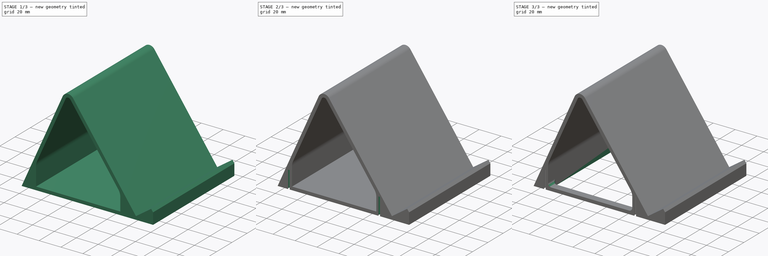
[diagram: build sequence overview — one tinted view per stage of 3, left to right]
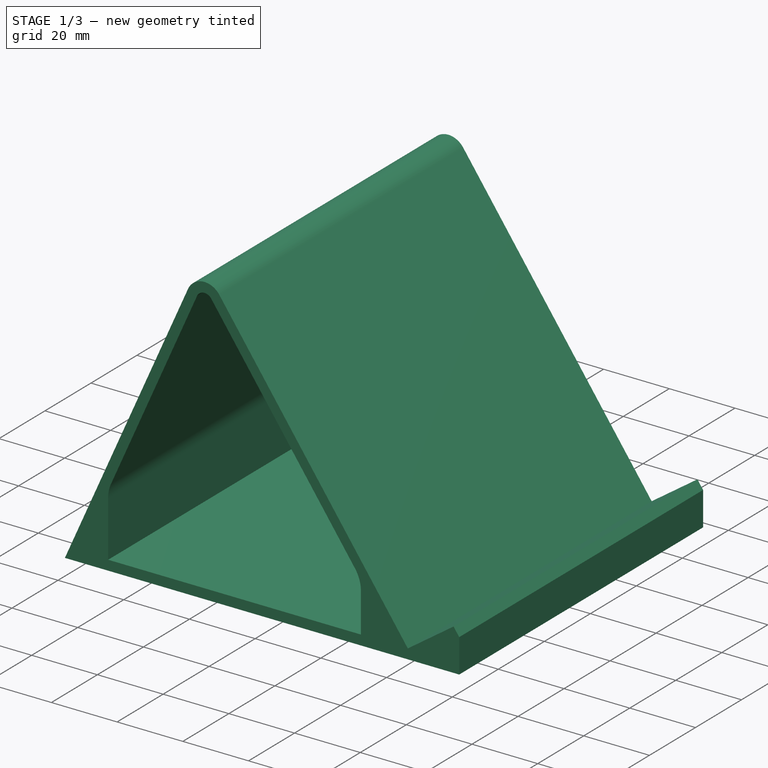
[diagram: stage 1 of 3 — iso view after this stage's code; geometry added in this stage tinted green]
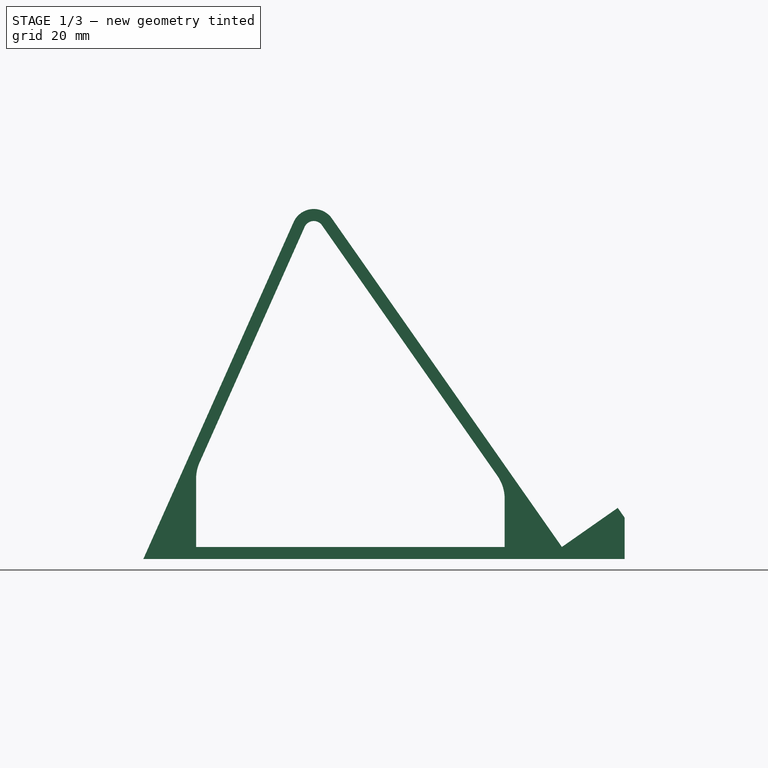
[diagram: stage 1 of 3 — front view after this stage's code; geometry added in this stage tinted green]
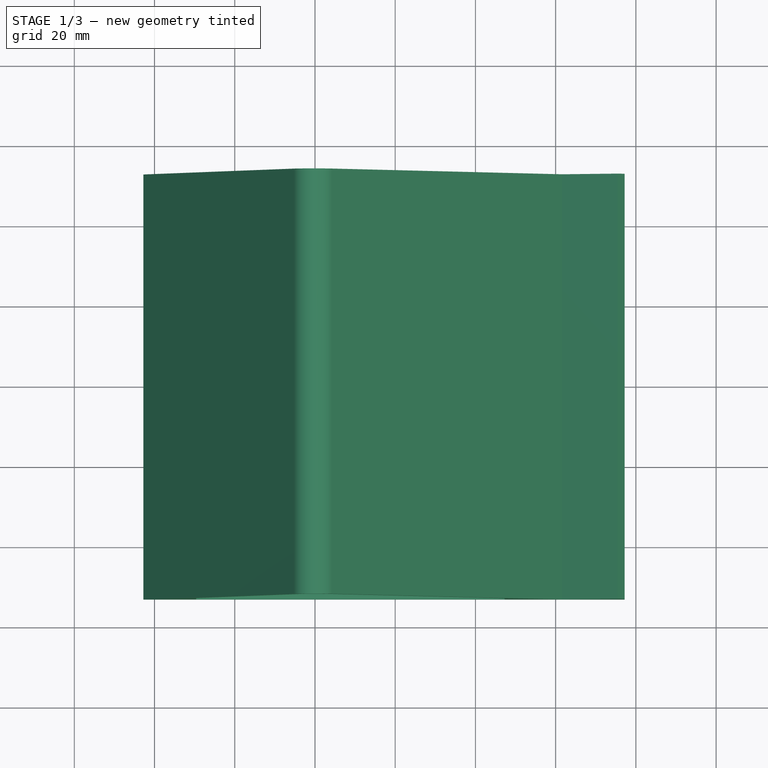
[diagram: stage 1 of 3 — top view after this stage's code; geometry added in this stage tinted green]
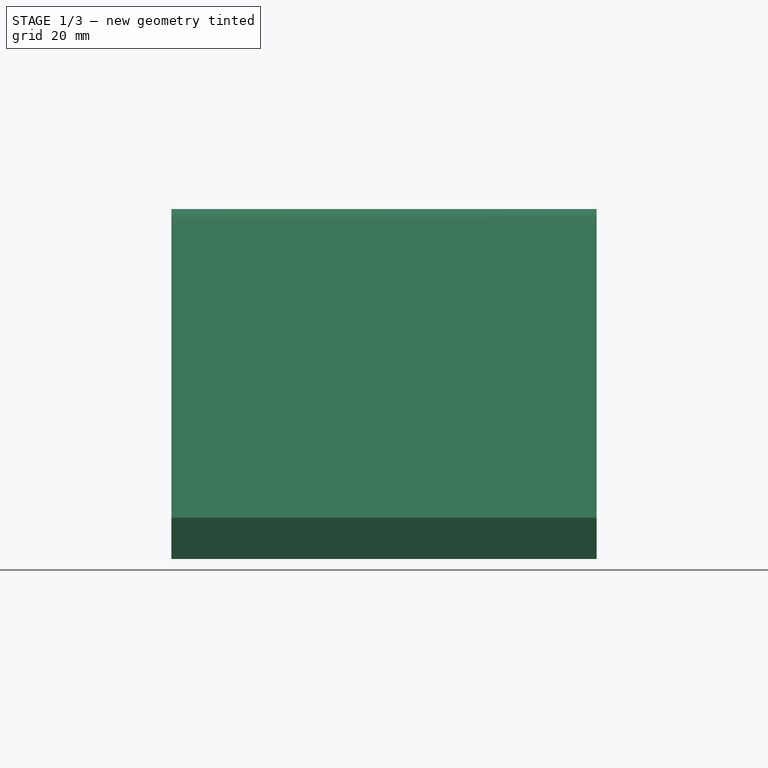
[diagram: stage 1 of 3 — right view after this stage's code; geometry added in this stage tinted green]
FCSTD DOCUMENT  (FreeCAD 0.19R24276 (Git))
Label: module_display_stand
License: All rights reserved
LicenseURL: http://en.wikipedia.org/wiki/All_rights_reserved
objects: Sketcher::SketchObject×5, PartDesign::Pocket×4, PartDesign::Pad×1, PartDesign::Fillet×1, PartDesign::Body×1
note: 18 computed .brp shape members not serialized (recipe doc carries the construction recipe); baked Part::Feature solids carry a one-line shape summary decoded from their .brp

FEATURE [Sketcher::SketchObject] Sketch
  FullyConstrained = true
  MapMode = 5
  Placement = pos=(0,0,0) rot=(1,0,0;1.5708rad)
  Support = -> [XZ_Plane]
  sketch-geometry (20):
    g0: ArcOfCircle CenterX=-20.3013 CenterY=81.7605 CenterZ=0 NormalX=0 NormalY=0 NormalZ=1 AngleXU=0 Radius=5.5 StartAngle=0.610865 EndAngle=2.72204
    g1: LineSegment StartX=-15.7959 StartY=84.9152 StartZ=0 EndX=41.5617 EndY=3 EndZ=0
    g2: LineSegment StartX=41.5617 StartY=3 StartZ=0 EndX=55.4873 EndY=12.7508 EndZ=0
    g3: LineSegment StartX=-25.3243 StartY=84.001 StartZ=0 EndX=-62.792 EndY=0 EndZ=0
    g4: LineSegment StartX=-48.7693 StartY=24.0735 StartZ=0 EndX=-22.5845 EndY=82.7789 EndZ=0
    g5: ArcOfCircle CenterX=-20.3013 CenterY=81.7605 CenterZ=0 NormalX=0 NormalY=0 NormalZ=1 AngleXU=0 Radius=2.5 StartAngle=0.610865 EndAngle=2.72204
    g6: LineSegment StartX=-18.2534 StartY=83.1945 StartZ=0 EndX=40 EndY=0 EndZ=0
    g7: LineSegment StartX=57.208 StartY=10.2933 StartZ=0 EndX=57.208 EndY=0 EndZ=0
    g8: LineSegment StartX=41.5617 StartY=3 StartZ=0 EndX=43.2824 EndY=0.542544 EndZ=0
    g9: LineSegment StartX=43.2824 StartY=0.542544 StartZ=0 EndX=57.208 EndY=10.2933 EndZ=0
    g10: LineSegment StartX=41.5617 StartY=3 StartZ=0 EndX=39.1042 EndY=1.27927 EndZ=0
    g11: LineSegment StartX=-49.6366 StartY=20 StartZ=0 EndX=-49.6366 EndY=3 EndZ=0
    g12: LineSegment StartX=-49.6366 StartY=3 StartZ=0 EndX=27.2891 EndY=3 EndZ=0
    g13: LineSegment StartX=-18.2534 StartY=83.1945 StartZ=0 EndX=25.4807 EndY=20.7358 EndZ=0
    g14: LineSegment StartX=27.2891 StartY=15 StartZ=0 EndX=27.2891 EndY=3 EndZ=0
    g15: ArcOfCircle CenterX=17.2891 CenterY=15 CenterZ=0 NormalX=0 NormalY=0 NormalZ=1 AngleXU=0 Radius=10 StartAngle=0 EndAngle=0.610865
    g16: ArcOfCircle CenterX=-39.6366 CenterY=20 CenterZ=0 NormalX=0 NormalY=0 NormalZ=1 AngleXU=0 Radius=10 StartAngle=2.72204 EndAngle=3.14159
    g17: LineSegment StartX=-48.7693 StartY=24.0735 StartZ=0 EndX=-51.5092 EndY=25.2956 EndZ=0
    g18: LineSegment StartX=57.208 StartY=10.2933 StartZ=0 EndX=55.4873 EndY=12.7508 EndZ=0
    g19: LineSegment StartX=57.208 StartY=0 StartZ=0 EndX=-62.792 EndY=0 EndZ=0
  constraints (54):
    c: Tangent(g0,g1) = 1.5708
    c: Tangent(g0,g3) = -1.5708
    c: PointOnObject(g3,g-1)
    c: Tangent(g5,g4) = 1.5708
    c: Tangent(g5,g6) = 1.5708
    c: PointOnObject(g7,g-1)
    c: PointOnObject(g6,g-1)
    c: Coincident(g2,g1)
    c: Angle(g1,g-1) = 0.959931
    c: Perpendicular(g1,g2)
    c: Coincident(g1,g8)
    c: Coincident(g8,g9)
    c: Coincident(g9,g7)
    c: Parallel(g8,g1)
    c: Perpendicular(g8,g9)
    c: Coincident(g10,g1)
    c: PointOnObject(g10,g6)
    c: Perpendicular(g10,g1)
    c: Distance(g10) = 3
    c: Distance(g9) = 17
    c: Parallel(g6,g1)
    c: DistanceX(g-1,g6) = 40
    c: Coincident(g0,g5)
    c: Vertical(g11)
    c: Coincident(g12,g11)
    c: Horizontal(g12)
    c: Coincident(g13,g5)
    c: Coincident(g14,g12)
    c: Vertical(g14)
    c: Tangent(g13,g15) = 1.5708
    c: Tangent(g14,g15) = 1.5708
    c: Tangent(g11,g16) = -1.5708
    c: Tangent(g4,g16) = 1.5708
    c: PointOnObject(g13,g6)
    c: Radius(g15) = 10
    c: Equal(g15,g16)
    c: DistanceY(g-1,g12) = 3
    c: Parallel(g4,g3)
    c: Coincident(g17,g4)
    c: PointOnObject(g17,g3)
    c: Perpendicular(g3,g17)
    c: DistanceY(g6,g1) = 3
    c: Vertical(g7)
    c: Coincident(g18,g7)
    c: Coincident(g2,g18)
    c: Perpendicular(g2,g18)
    c: Coincident(g19,g7)
    c: Coincident(g19,g3)
    c: Distance(g18) = 3
    c: DistanceY(g3,g11) = 20
    c: DistanceY(g-1,g14) = 15
    c: Radius(g5) = 2.5
    c: Distance(g1,g0) = 100
    c: DistanceX(g19,g19) = 120
FEATURE [PartDesign::Pad] Pad
  Direction = (1,1,1)
  Length = 106
  Length2 = 100
  Midplane = true
  Placement = pos=(0,0,0) rot=(1,0,0;1.5708rad)
  Profile = -> Sketch
  Type = 0
FEATURE [Sketcher::SketchObject] Sketch001
  ExternalGeometry = -> [Pad]
  FullyConstrained = true
  MapMode = 5
  Placement = pos=(29.2979,-4.6e-15,20.5146) rot=(0.461749,0,0.887011;3.14159rad)
  Support = -> [Pad]
  sketch-geometry (4):
    g0: Circle CenterX=-23.8814 CenterY=-47 CenterZ=0 NormalX=0 NormalY=0 NormalZ=1 AngleXU=0 Radius=1.65
    g1: Circle CenterX=-23.8814 CenterY=47 CenterZ=0 NormalX=0 NormalY=0 NormalZ=1 AngleXU=0 Radius=1.65
    g2: LineSegment StartX=-23.8814 StartY=-47 StartZ=0 EndX=-23.8814 EndY=0 EndZ=0
    g3: LineSegment StartX=-23.8814 StartY=0 StartZ=0 EndX=-23.8814 EndY=47 EndZ=0
  constraints (11):
    c: Coincident(g2,g0)
    c: PointOnObject(g2,g-1)
    c: Vertical(g2)
    c: Coincident(g2,g3)
    c: Coincident(g3,g1)
    c: Vertical(g3)
    c: Equal(g3,g2)
    c: Diameter(g0) = 3.3
    c: Equal(g0,g1)
    c: DistanceY(g0,g1) = 94
    c: DistanceX(g2,g-3) = 2.5
FEATURE [PartDesign::Pocket] Pocket
  BaseFeature = -> Pad
  Length = 30
  Length2 = 100
  Midplane = true
  Placement = pos=(0,0,0) rot=(1,0,0;1.5708rad)
  Profile = -> Sketch001
  Type = 0
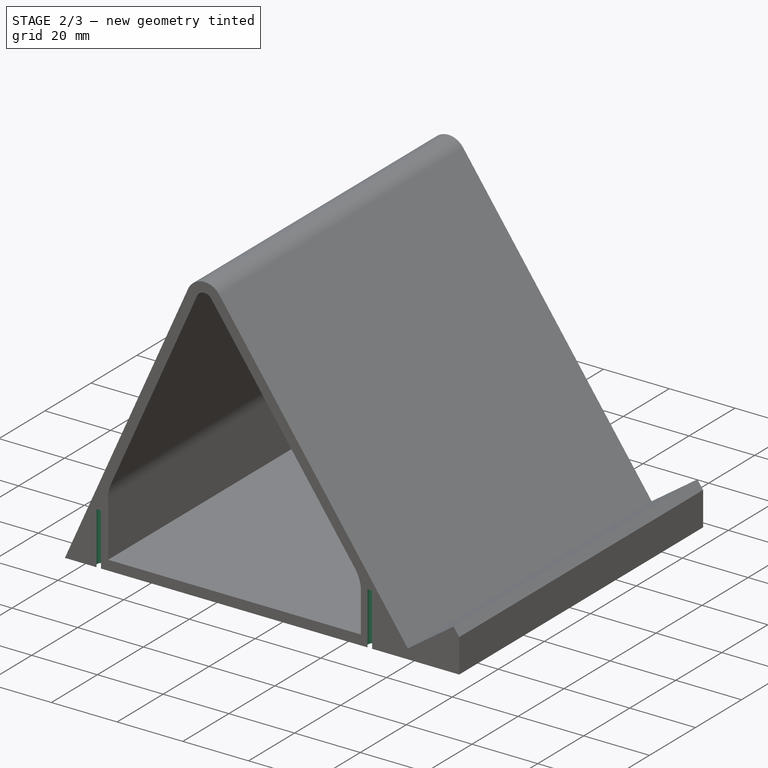
[diagram: stage 2 of 3 — iso view after this stage's code; geometry added in this stage tinted green]
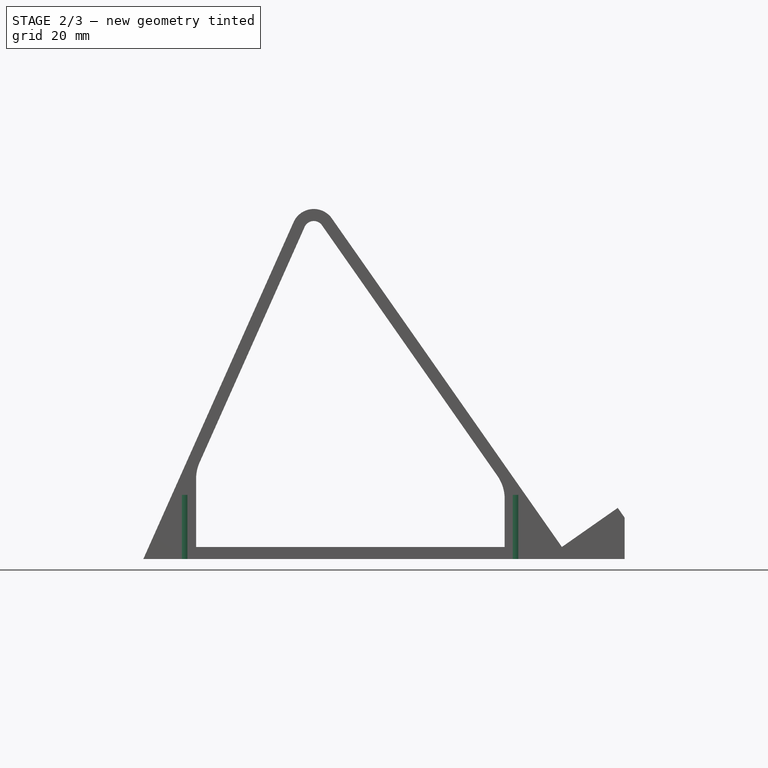
[diagram: stage 2 of 3 — front view after this stage's code; geometry added in this stage tinted green]
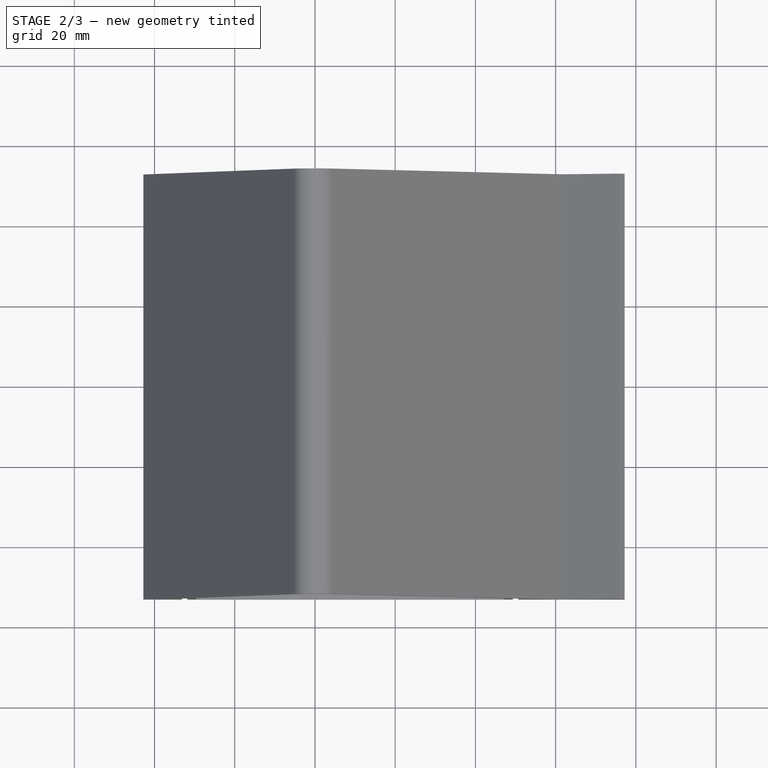
[diagram: stage 2 of 3 — top view after this stage's code; geometry added in this stage tinted green]
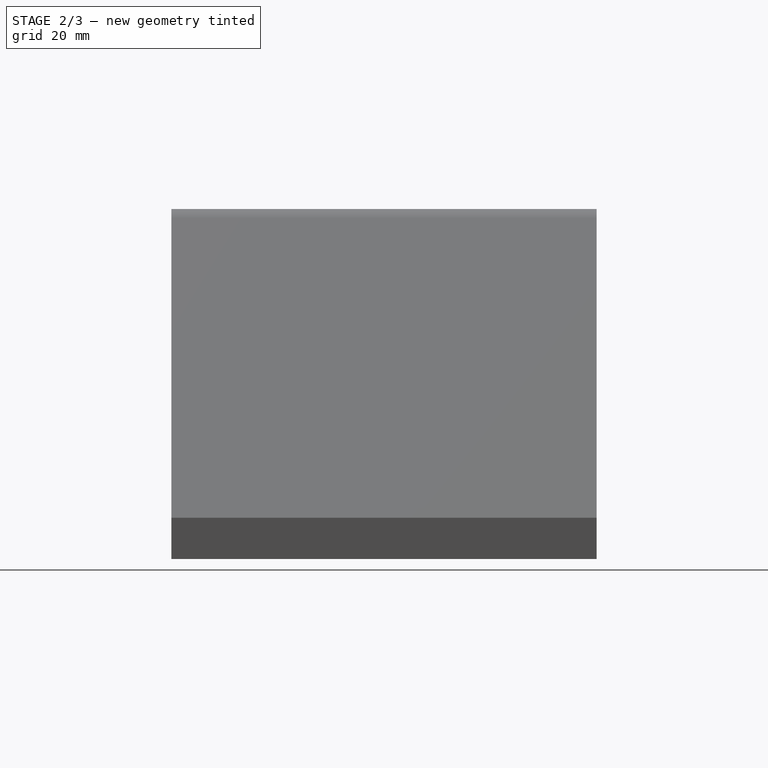
[diagram: stage 2 of 3 — right view after this stage's code; geometry added in this stage tinted green]
FEATURE [Sketcher::SketchObject] Sketch002
  FullyConstrained = true
  MapMode = 5
  Placement = pos=(0,0,0) rot=(1,0,0;3.14159rad)
  Support = -> [Pocket]
  sketch-geometry (10):
    g0: LineSegment StartX=-52.5 StartY=51.5 StartZ=0 EndX=30 EndY=51.5 EndZ=0
    g1: LineSegment StartX=30 StartY=51.5 StartZ=0 EndX=30 EndY=-51.5 EndZ=0
    g2: LineSegment StartX=30 StartY=-51.5 StartZ=0 EndX=-52.5 EndY=-51.5 EndZ=0
    g3: LineSegment StartX=-52.5 StartY=-51.5 StartZ=0 EndX=-52.5 EndY=51.5 EndZ=0
    g4: LineSegment StartX=-52.5 StartY=51.5 StartZ=0 EndX=0 EndY=0 EndZ=0
    g5: LineSegment StartX=-52.5 StartY=-51.5 StartZ=0 EndX=0 EndY=7.1e-15 EndZ=0
    g6: Circle CenterX=-52.5 CenterY=51.5 CenterZ=0 NormalX=0 NormalY=0 NormalZ=1 AngleXU=0 Radius=1.65
    g7: Circle CenterX=30 CenterY=51.5 CenterZ=0 NormalX=0 NormalY=0 NormalZ=1 AngleXU=0 Radius=1.65
    g8: Circle CenterX=30 CenterY=-51.5 CenterZ=0 NormalX=0 NormalY=0 NormalZ=1 AngleXU=0 Radius=1.65
    g9: Circle CenterX=-52.5 CenterY=-51.5 CenterZ=0 NormalX=0 NormalY=0 NormalZ=1 AngleXU=0 Radius=1.65
  constraints (24):
    c: Coincident(g0,g1)
    c: Coincident(g1,g2)
    c: Coincident(g2,g3)
    c: Coincident(g3,g0)
    c: Horizontal(g0)
    c: Horizontal(g2)
    c: Vertical(g1)
    c: Vertical(g3)
    c: Coincident(g4,g0)
    c: Coincident(g4,g-1)
    c: Coincident(g5,g2)
    c: Coincident(g5,g-1)
    c: Equal(g4,g5)
    c: DistanceX(g0,g-1) = 52.5
    c: Coincident(g6,g0)
    c: Coincident(g7,g0)
    c: Coincident(g8,g1)
    c: Coincident(g9,g2)
    c: Diameter(g9) = 3.3
    c: Equal(g9,g8)
    c: Equal(g9,g7)
    c: Equal(g9,g6)
    c: DistanceY(g3,g3) = 103
    c: DistanceX(g-1,g7) = 30
FEATURE [PartDesign::Pocket] Pocket001
  BaseFeature = -> Pocket
  Length = 16
  Length2 = 100
  Placement = pos=(0,0,0) rot=(1,0,0;1.5708rad)
  Profile = -> Sketch002
  Type = 0
FEATURE [Sketcher::SketchObject] Sketch003
  FullyConstrained = true
  MapMode = 5
  Placement = pos=(0,0,0) rot=(0,1,0;3.14159rad)
  Support = -> [XY_Plane]
  sketch-geometry (10):
    g0: LineSegment StartX=-50 StartY=46 StartZ=0 EndX=56 EndY=46 EndZ=0
    g1: LineSegment StartX=56 StartY=46 StartZ=0 EndX=56 EndY=-46 EndZ=0
    g2: LineSegment StartX=56 StartY=-46 StartZ=0 EndX=-50 EndY=-46 EndZ=0
    g3: LineSegment StartX=-50 StartY=-46 StartZ=0 EndX=-50 EndY=46 EndZ=0
    g4: Circle CenterX=-50 CenterY=46 CenterZ=0 NormalX=0 NormalY=0 NormalZ=1 AngleXU=0 Radius=4.5
    g5: Circle CenterX=56 CenterY=46 CenterZ=0 NormalX=0 NormalY=0 NormalZ=1 AngleXU=0 Radius=4.5
    g6: Circle CenterX=-50 CenterY=-46 CenterZ=0 NormalX=0 NormalY=0 NormalZ=1 AngleXU=0 Radius=4.5
    g7: Circle CenterX=56 CenterY=-46 CenterZ=0 NormalX=0 NormalY=0 NormalZ=1 AngleXU=0 Radius=4.5
    g8: LineSegment StartX=56 StartY=-46 StartZ=0 EndX=-7.1e-15 EndY=0 EndZ=0
    g9: LineSegment StartX=0 StartY=0 StartZ=0 EndX=56 EndY=46 EndZ=0
  constraints (24):
    c: Coincident(g0,g1)
    c: Coincident(g1,g2)
    c: Coincident(g2,g3)
    c: Coincident(g3,g0)
    c: Horizontal(g0)
    c: Horizontal(g2)
    c: Vertical(g1)
    c: Vertical(g3)
    c: Coincident(g4,g0)
    c: Coincident(g5,g0)
    c: Coincident(g6,g2)
    c: Coincident(g7,g1)
    c: Diameter(g6) = 9
    c: Equal(g6,g4)
    c: Equal(g6,g5)
    c: Equal(g6,g7)
    c: DistanceX(g-1,g5) = 56
    c: DistanceX(g4,g-1) = 50
    c: Coincident(g8,g7)
    c: Coincident(g8,g-1)
    c: Coincident(g8,g9)
    c: Coincident(g9,g5)
    c: Equal(g9,g8)
    c: DistanceY(g1,g1) = 92
FEATURE [PartDesign::Pocket] Pocket002
  BaseFeature = -> Pocket001
  Length = 0.4
  Length2 = 100
  Placement = pos=(0,0,0) rot=(1,0,0;1.5708rad)
  Profile = -> Sketch003
  Type = 0
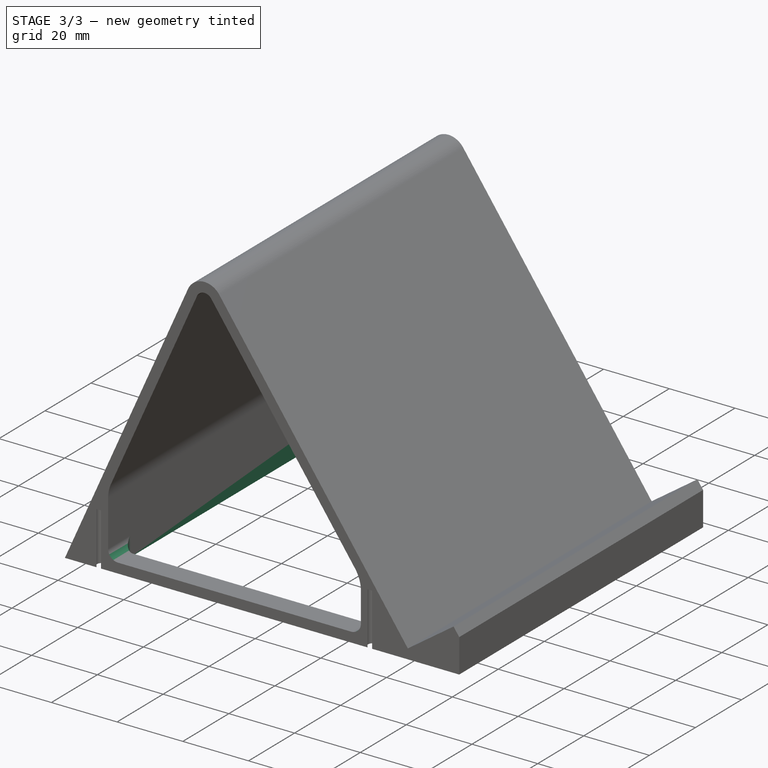
[diagram: stage 3 of 3 — iso view after this stage's code; geometry added in this stage tinted green]
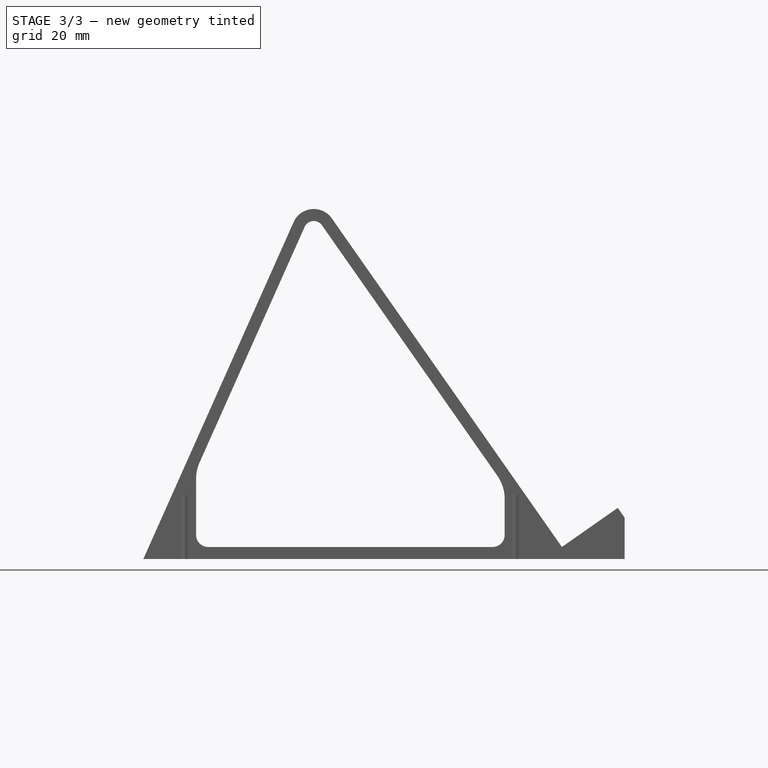
[diagram: stage 3 of 3 — front view after this stage's code; geometry added in this stage tinted green]
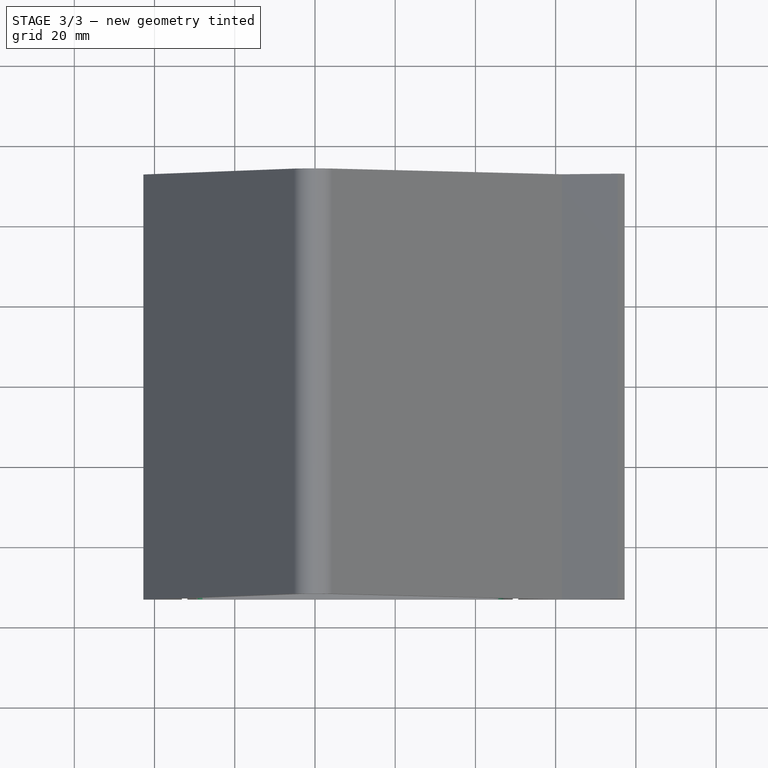
[diagram: stage 3 of 3 — top view after this stage's code; geometry added in this stage tinted green]
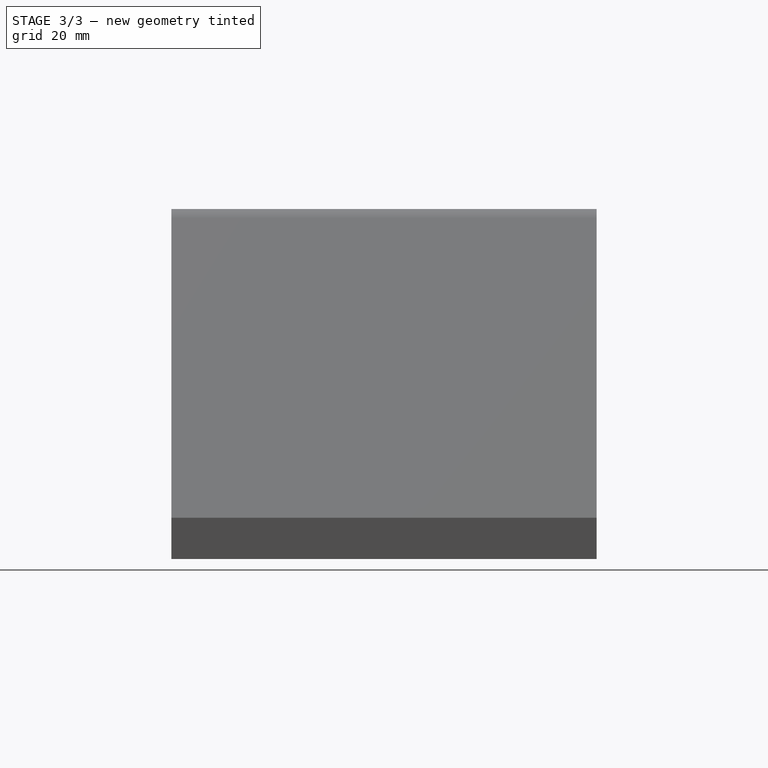
[diagram: stage 3 of 3 — right view after this stage's code; geometry added in this stage tinted green]
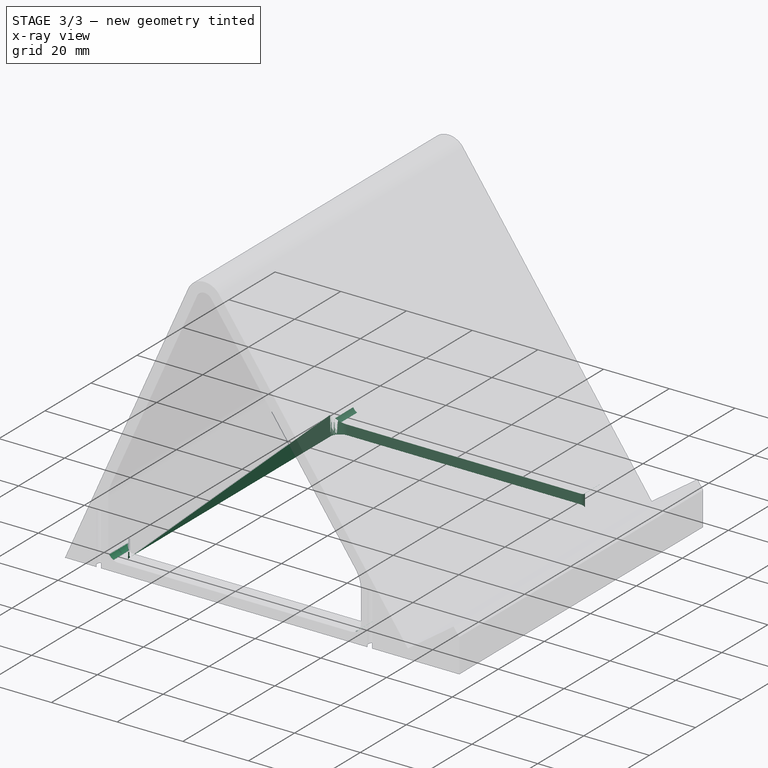
[diagram: stage 3 of 3 — x-ray composite at the iso view; earlier geometry ghosted, this stage's added geometry solid]
FEATURE [PartDesign::Fillet] Fillet
  Base = -> Pocket002 [Edge80,Edge78]
  BaseFeature = -> Pocket002
  Placement = pos=(0,0,0) rot=(1,0,0;1.5708rad)
  Radius = 3
  SupportTransform = false
FEATURE [Sketcher::SketchObject] Sketch004
  ExternalGeometry = -> [Fillet]
  FullyConstrained = true
  MapMode = 5
  Placement = pos=(0,-7e-16,3) rot=(0,0,1;3.14159rad)
  Support = -> [Fillet]
  sketch-geometry (10):
    g0: LineSegment StartX=-24.2891 StartY=46.5 StartZ=0 EndX=46.6366 EndY=46.5 EndZ=0
    g1: LineSegment StartX=49.6366 StartY=43.5 StartZ=0 EndX=49.6366 EndY=-43.5 EndZ=0
    g2: LineSegment StartX=46.6366 StartY=-46.5 StartZ=0 EndX=-24.2891 EndY=-46.5 EndZ=0
    g3: LineSegment StartX=-27.2891 StartY=-43.5 StartZ=0 EndX=-27.2891 EndY=43.5 EndZ=0
    g4: ArcOfCircle CenterX=-24.2891 CenterY=43.5 CenterZ=0 NormalX=0 NormalY=0 NormalZ=1 AngleXU=0 Radius=3 StartAngle=1.5708 EndAngle=3.14159
    g5: ArcOfCircle CenterX=46.6366 CenterY=43.5 CenterZ=0 NormalX=0 NormalY=0 NormalZ=1 AngleXU=0 Radius=3 StartAngle=2e-16 EndAngle=1.5708
    g6: ArcOfCircle CenterX=46.6366 CenterY=-43.5 CenterZ=0 NormalX=0 NormalY=0 NormalZ=1 AngleXU=0 Radius=3 StartAngle=4.71239 EndAngle=6.28319
    g7: ArcOfCircle CenterX=-24.2891 CenterY=-43.5 CenterZ=0 NormalX=0 NormalY=0 NormalZ=1 AngleXU=0 Radius=3 StartAngle=3.14159 EndAngle=4.71239
    g8: LineSegment StartX=-24.2891 StartY=43.5 StartZ=0 EndX=0 EndY=0 EndZ=0
    g9: LineSegment StartX=0 StartY=0 StartZ=0 EndX=-24.2891 EndY=-43.5 EndZ=0
  constraints (24):
    c: Horizontal(g0)
    c: Horizontal(g2)
    c: Vertical(g1)
    c: Vertical(g3)
    c: Tangent(g3,g4) = 1.5708
    c: Tangent(g0,g4) = 1.5708
    c: Tangent(g0,g5) = 1.5708
    c: Tangent(g1,g5) = 1.5708
    c: Tangent(g1,g6) = 1.5708
    c: Tangent(g2,g6) = 1.5708
    c: Tangent(g2,g7) = 1.5708
    c: Tangent(g3,g7) = 1.5708
    c: Radius(g4) = 3
    c: Equal(g4,g5)
    c: Equal(g4,g6)
    c: Equal(g4,g7)
    c: PointOnObject(g3,g-3)
    c: PointOnObject(g1,g-4)
    c: Coincident(g8,g4)
    c: Coincident(g8,g-1)
    c: Coincident(g8,g9)
    c: Coincident(g9,g7)
    c: Equal(g8,g9)
    c: DistanceY(g2,g0) = 93
FEATURE [PartDesign::Pocket] Pocket003
  BaseFeature = -> Fillet
  Length = 12
  Length2 = 100
  Midplane = true
  Placement = pos=(0,0,0) rot=(1,0,0;1.5708rad)
  Profile = -> Sketch004
  Refine = true
  Type = 0
FEATURE [PartDesign::Body] Body
  Group = -> [Sketch,Pad,Sketch001,Pocket,Sketch002,Pocket001,Sketch003,Pocket002,Fillet,Sketch004,Pocket003]
  Origin = -> Origin
  Tip = -> Pocket003
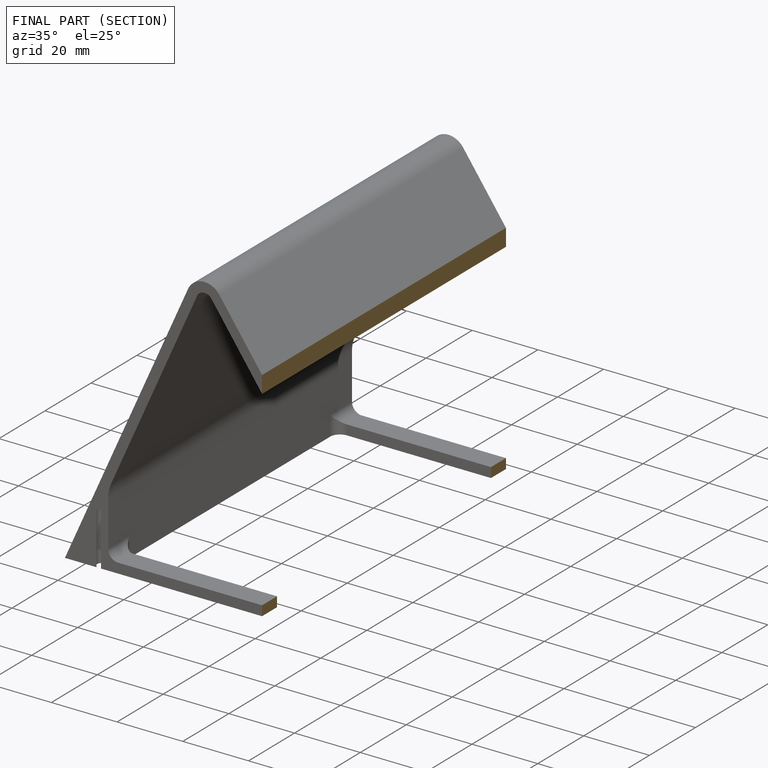
[diagram: finished part — half-section view (interior)]
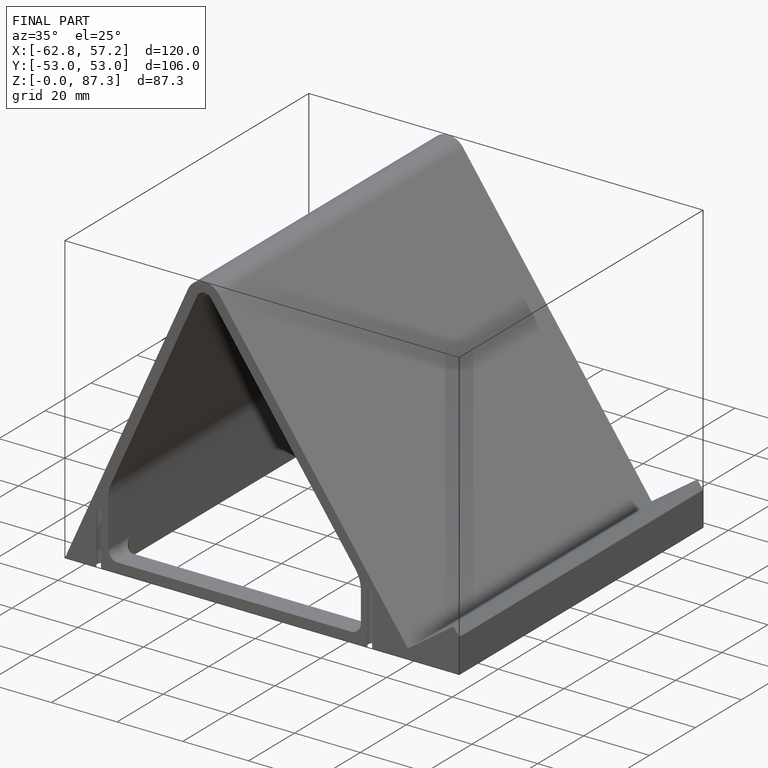
[diagram: finished part — iso view with bounding-box wireframe]
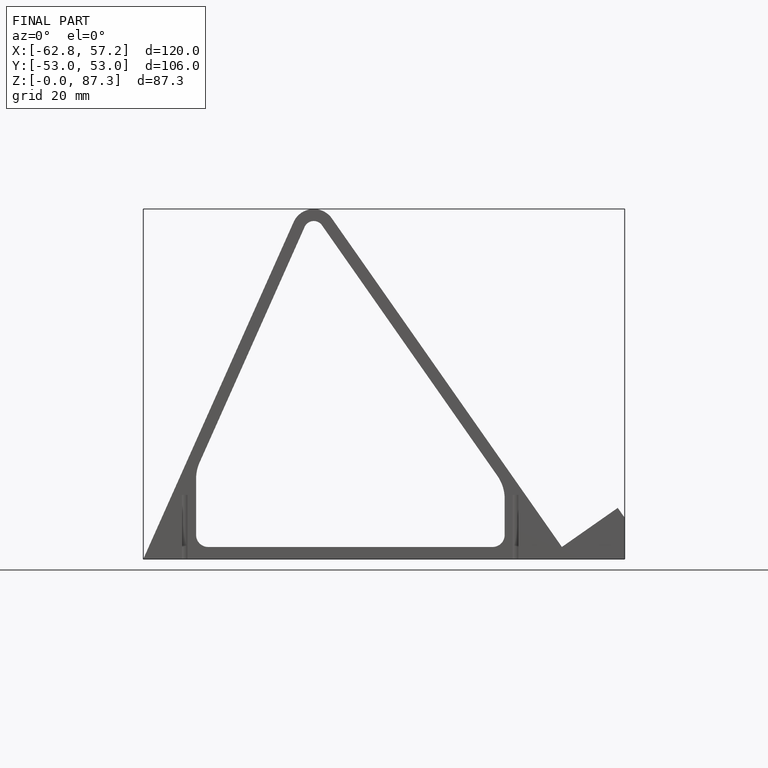
[diagram: finished part — front view with bounding-box wireframe]
